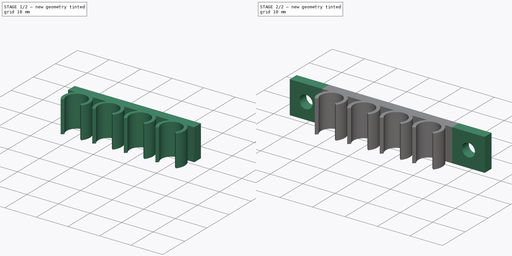
[diagram: build sequence overview — one tinted view per stage of 2, left to right]
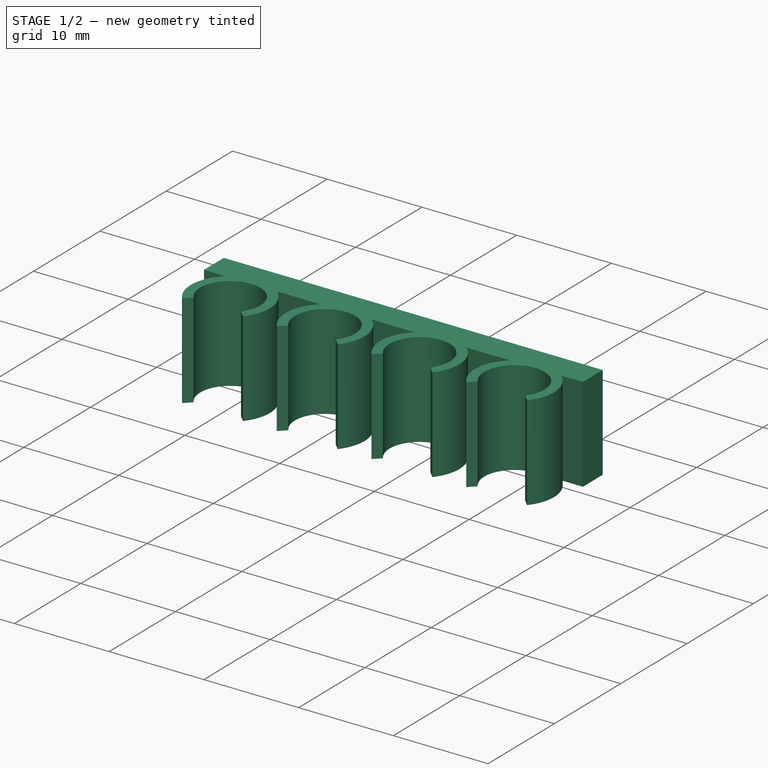
[diagram: stage 1 of 2 — iso view after this stage's code; geometry added in this stage tinted green]
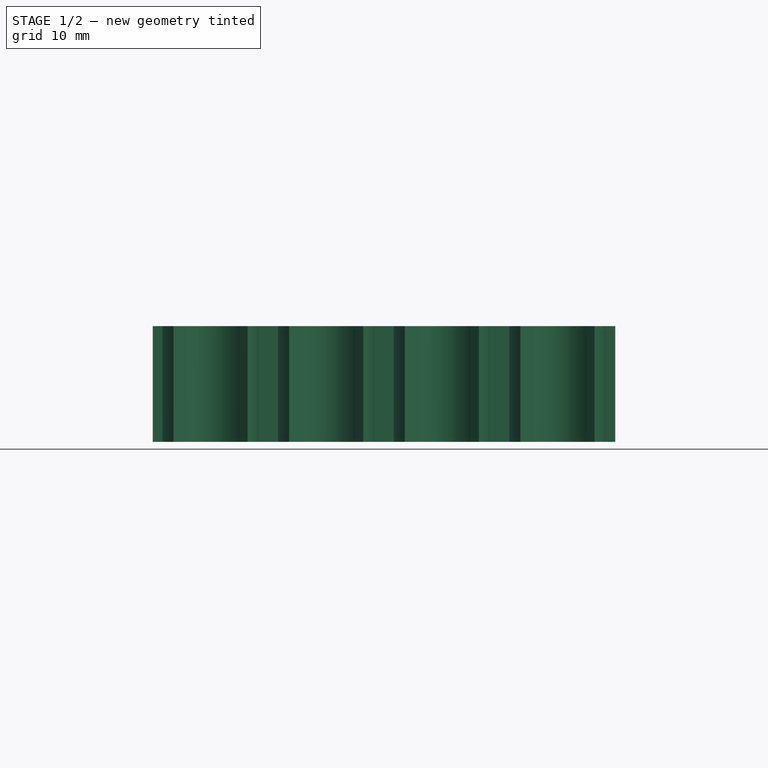
[diagram: stage 1 of 2 — front view after this stage's code; geometry added in this stage tinted green]
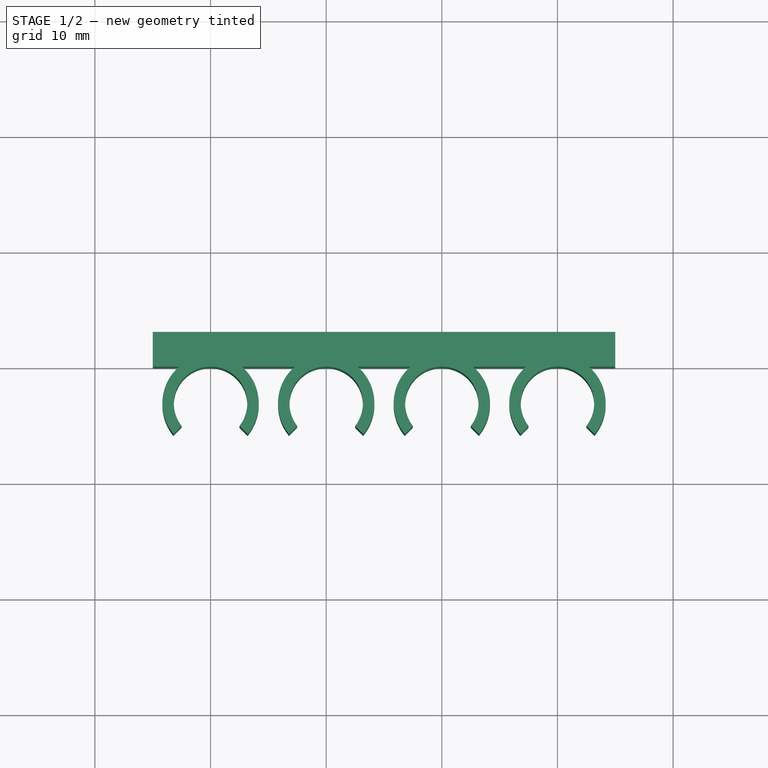
[diagram: stage 1 of 2 — top view after this stage's code; geometry added in this stage tinted green]
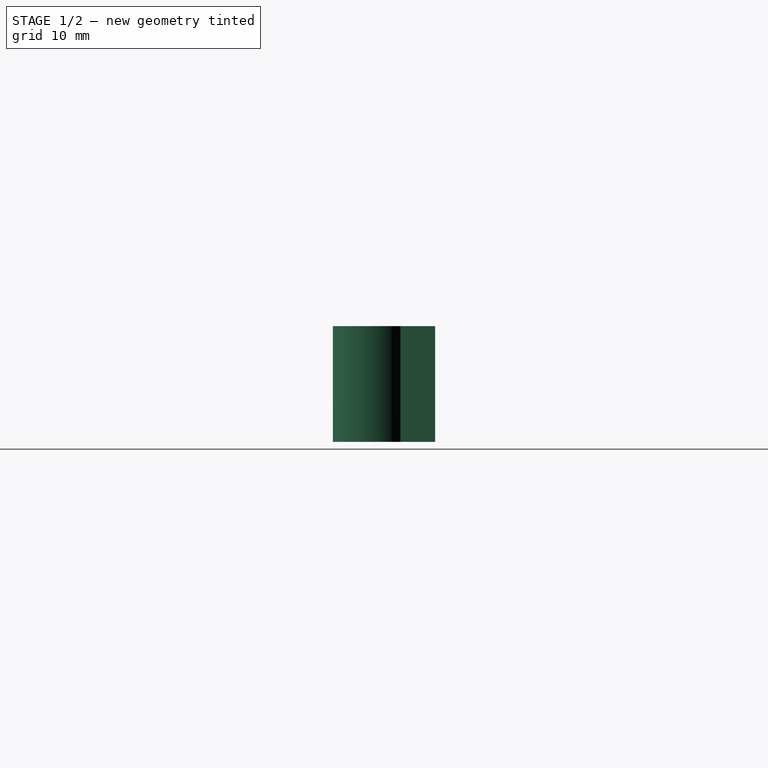
[diagram: stage 1 of 2 — right view after this stage's code; geometry added in this stage tinted green]
FCSTD DOCUMENT  (FreeCAD 0.21R33694 (Git))
Label: jack_holder_large
License: All rights reserved
LicenseURL: https://en.wikipedia.org/wiki/All_rights_reserved
objects: Sketcher::SketchObject×3, PartDesign::Pad×2, PartDesign::LinearPattern×1, PartDesign::Pocket×1, PartDesign::Body×1
note: 11 computed .brp shape members not serialized (recipe doc carries the construction recipe); baked Part::Feature solids carry a one-line shape summary decoded from their .brp

FEATURE [Sketcher::SketchObject] Sketch
  FullyConstrained = true
  MapMode = 5
  Support = -> [XY_Plane]
  sketch-geometry (10):
    g0: LineSegment StartX=-5 StartY=3 StartZ=0 EndX=5 EndY=3 EndZ=0
    g1: LineSegment StartX=5 StartY=3 StartZ=0 EndX=5 EndY=0 EndZ=0
    g2: LineSegment StartX=5 StartY=0 StartZ=0 EndX=2.70249 EndY=-1.6498e-12 EndZ=0
    g3: LineSegment StartX=-5 StartY=3 StartZ=0 EndX=-5 EndY=0 EndZ=0
    g4: LineSegment StartX=-5 StartY=0 StartZ=0 EndX=-2.70249 EndY=0 EndZ=0
    g5: ArcOfCircle CenterX=0 CenterY=-3.175 CenterZ=0 NormalX=0 NormalY=0 NormalZ=1 AngleXU=0 Radius=3.175 StartAngle=5.61897 EndAngle=10.089
    g6: ArcOfCircle CenterX=0 CenterY=-3.175 CenterZ=0 NormalX=0 NormalY=0 NormalZ=1 AngleXU=0 Radius=4.16942 StartAngle=5.58997 EndAngle=7.1488
    g7: LineSegment StartX=3.20711 StartY=-5.83931 StartZ=0 EndX=2.5 EndY=-5.1322 EndZ=0
    g8: LineSegment StartX=-3.20711 StartY=-5.83931 StartZ=0 EndX=-2.5 EndY=-5.1322 EndZ=0
    g9: ArcOfCircle CenterX=0 CenterY=-3.175 CenterZ=0 NormalX=0 NormalY=0 NormalZ=1 AngleXU=0 Radius=4.16942 StartAngle=2.27597 EndAngle=3.8348
  constraints (28):
    c: Coincident(g1,g0)
    c: PointOnObject(g1,g-1)
    c: Vertical(g1)
    c: Coincident(g2,g1)
    c: PointOnObject(g2,g-1)
    c: Coincident(g3,g0)
    c: PointOnObject(g3,g-1)
    c: Vertical(g3)
    c: Coincident(g4,g3)
    c: Symmetric(g0,g0,g-2)
    c: Coincident(g6,g5)
    c: Coincident(g7,g6)
    c: Coincident(g7,g5)
    c: Coincident(g8,g9)
    c: Coincident(g8,g5)
    c: Angle(g-2,g8) = 2.35619
    c: Coincident(g9,g4)
    c: Coincident(g6,g9)
    c: DistanceY(g1,g1) = 3
    c: DistanceX(g0,g0) = 10
    c: Diameter(g5) = 6.35
    c: Symmetric(g5,g5,g-2)
    c: Symmetric(g8,g6,g-2)
    c: Distance(g8) = 1
    c: Coincident(g6,g2)
    c: PointOnObject(g4,g-1)
    c: PointOnObject(g-1,g5)
    c: DistanceX(g5,g5) = 5
FEATURE [PartDesign::Pad] Pad
  Direction = (0,0,1)
  Length = 10
  Length2 = 10
  Profile = -> Sketch
  ReferenceAxis = -> Sketch [N_Axis]
  Type = 0
FEATURE [PartDesign::LinearPattern] LinearPattern
  BaseFeature = -> Pad
  Direction = -> Sketch [H_Axis]
  Length = 30
  Occurrences = 4
  Originals = -> [Pad]
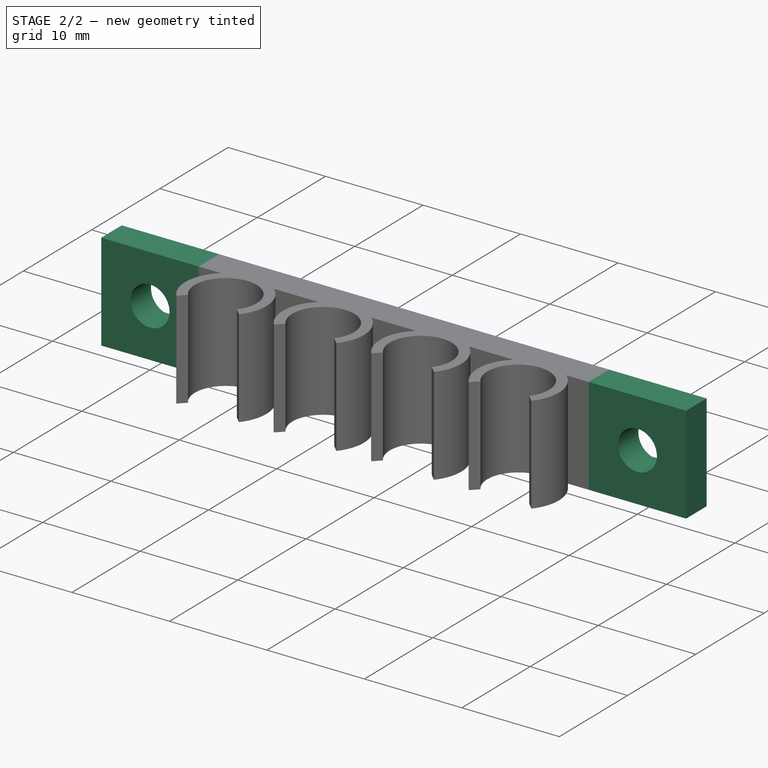
[diagram: stage 2 of 2 — iso view after this stage's code; geometry added in this stage tinted green]
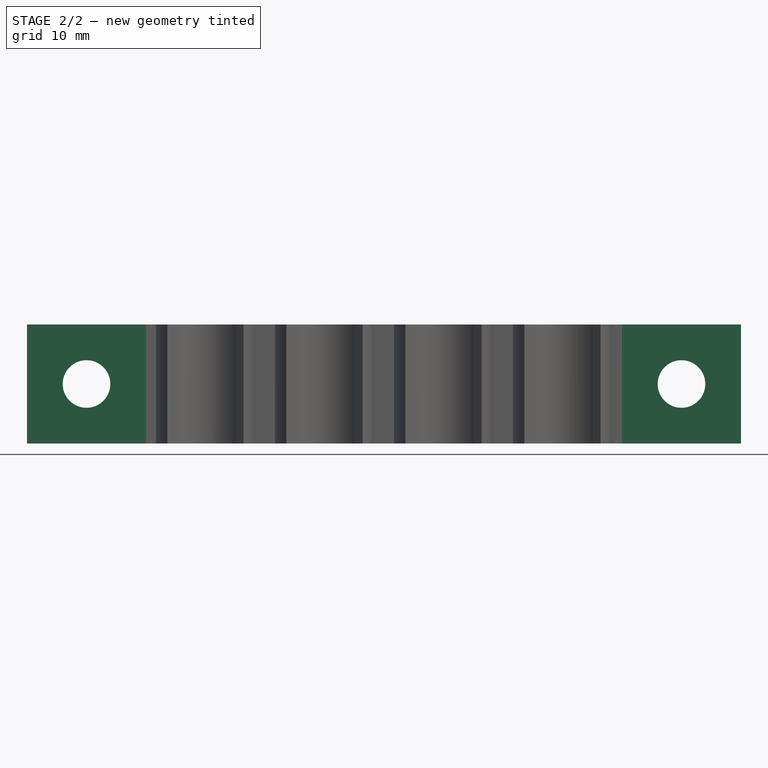
[diagram: stage 2 of 2 — front view after this stage's code; geometry added in this stage tinted green]
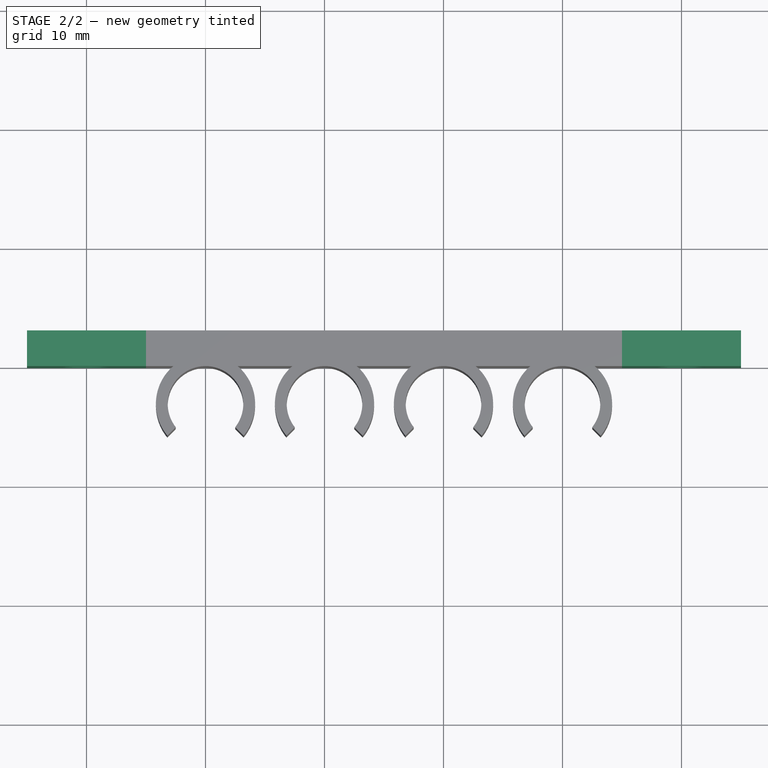
[diagram: stage 2 of 2 — top view after this stage's code; geometry added in this stage tinted green]
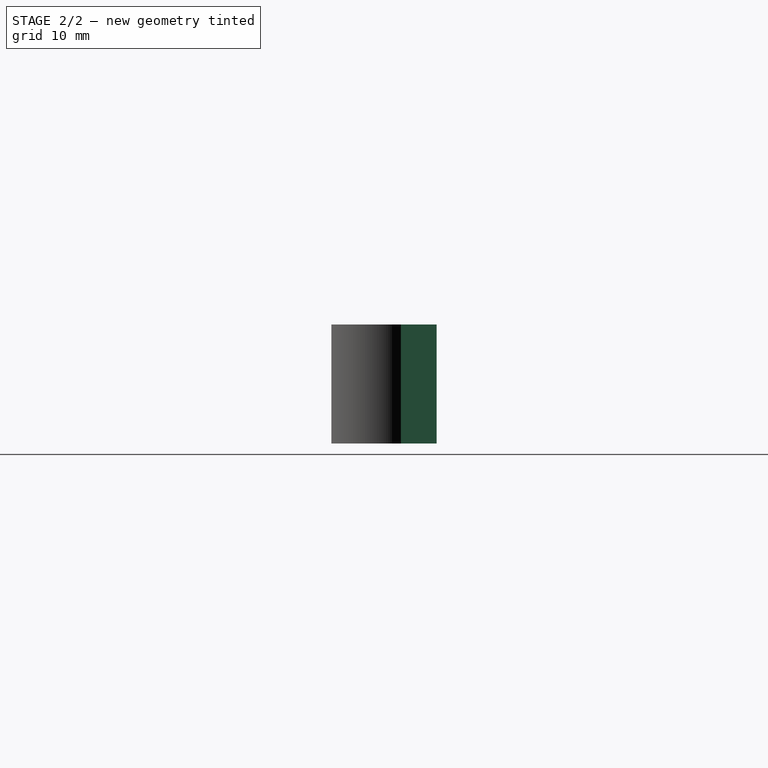
[diagram: stage 2 of 2 — right view after this stage's code; geometry added in this stage tinted green]
FEATURE [Sketcher::SketchObject] Sketch001
  ExternalGeometry = -> [LinearPattern]
  FullyConstrained = true
  MapMode = 5
  Support = -> [XY_Plane]
  sketch-geometry (4):
    g0: LineSegment StartX=-15 StartY=0 StartZ=0 EndX=45 EndY=0 EndZ=0
    g1: LineSegment StartX=45 StartY=0 StartZ=0 EndX=45 EndY=3 EndZ=0
    g2: LineSegment StartX=45 StartY=3 StartZ=0 EndX=-15 EndY=3 EndZ=0
    g3: LineSegment StartX=-15 StartY=3 StartZ=0 EndX=-15 EndY=0 EndZ=0
  constraints (12):
    c: Coincident(g0,g1)
    c: Coincident(g1,g2)
    c: Coincident(g2,g3)
    c: Coincident(g3,g0)
    c: Horizontal(g0)
    c: Horizontal(g2)
    c: Vertical(g1)
    c: Vertical(g3)
    c: PointOnObject(g0,g-1)
    c: DistanceY(g-3,g1) = 0
    c: DistanceX(g-3,g1) = 10
    c: DistanceX(g0,g-4) = 10
FEATURE [PartDesign::Pad] Pad001
  BaseFeature = -> LinearPattern
  Direction = (0,0,1)
  Length = 10
  Length2 = 10
  Profile = -> Sketch001
  ReferenceAxis = -> Sketch001 [N_Axis]
  Type = 0
FEATURE [Sketcher::SketchObject] Sketch002
  ExternalGeometry = -> [Pad001]
  FullyConstrained = true
  MapMode = 5
  Placement = pos=(0,0,0) rot=(1,0,0;1.5708rad)
  Support = -> [XZ_Plane]
  sketch-geometry (2):
    g0: Circle CenterX=-10 CenterY=5 CenterZ=0 NormalX=0 NormalY=0 NormalZ=1 AngleXU=0 Radius=2
    g1: Circle CenterX=40 CenterY=5 CenterZ=0 NormalX=0 NormalY=0 NormalZ=1 AngleXU=0 Radius=2
  constraints (6):
    c: Equal(g0,g1)
    c: Diameter(g0) = 4
    c: DistanceY(g-1,g0) = 5
    c: DistanceY(g1,g0) = 0
    c: DistanceX(g-4,g0) = 5
    c: DistanceX(g1,g-3) = 5
FEATURE [PartDesign::Pocket] Pocket
  BaseFeature = -> Pad001
  Direction = (0,1,2e-16)
  Length = 5
  Length2 = 5
  Profile = -> Sketch002
  ReferenceAxis = -> Sketch002 [N_Axis]
  Type = 2
FEATURE [PartDesign::Body] Body
  Group = -> [Sketch,Pad,LinearPattern,Sketch001,Pad001,Sketch002,Pocket]
  Origin = -> Origin
  Tip = -> Pocket
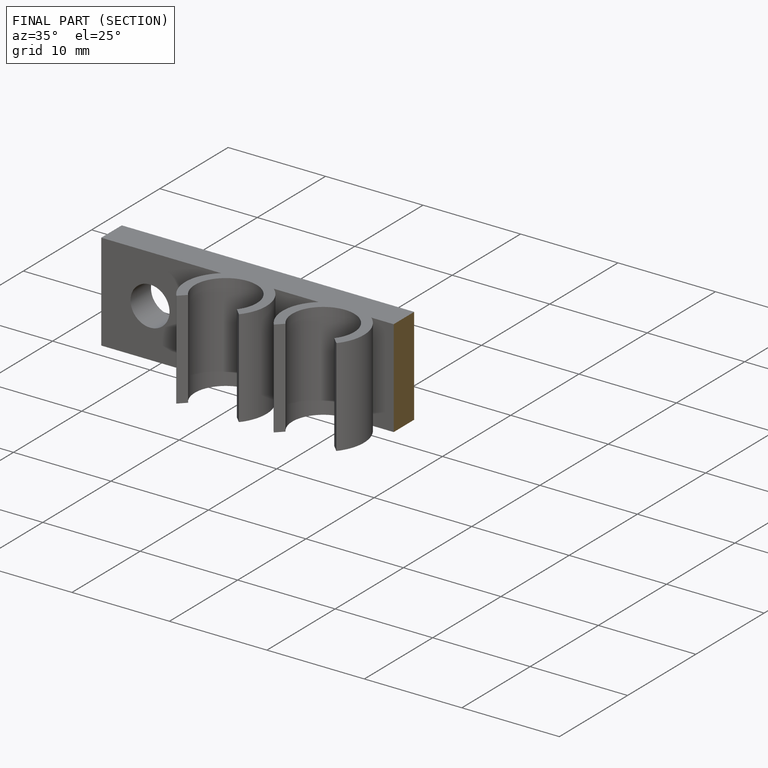
[diagram: finished part — half-section view (interior)]
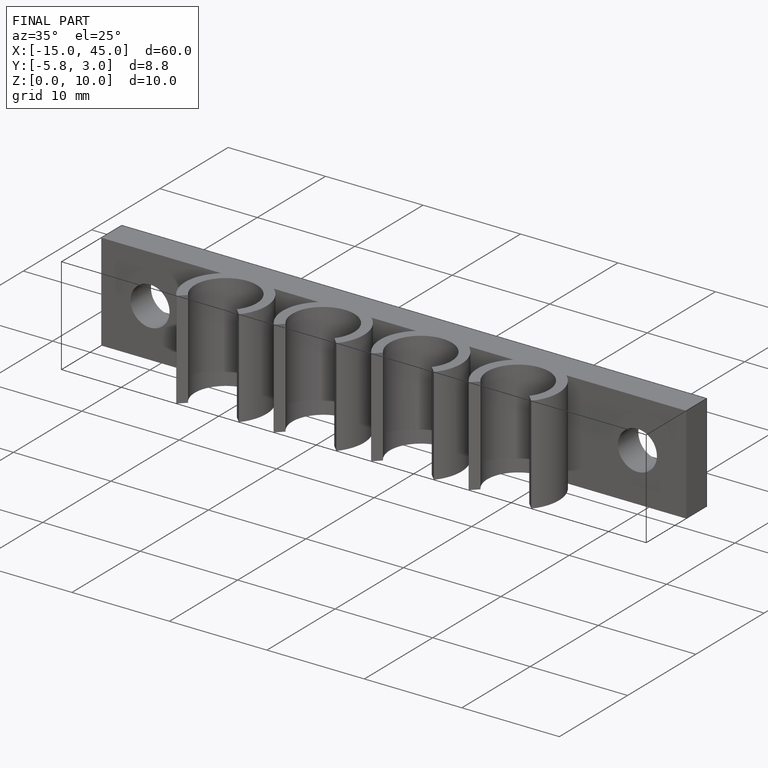
[diagram: finished part — iso view with bounding-box wireframe]
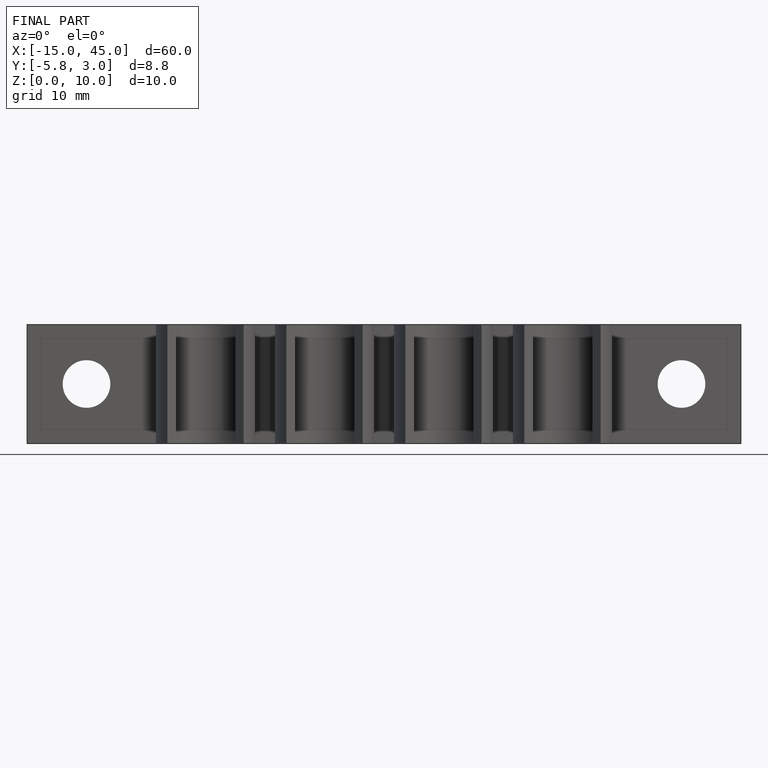
[diagram: finished part — front view with bounding-box wireframe]
